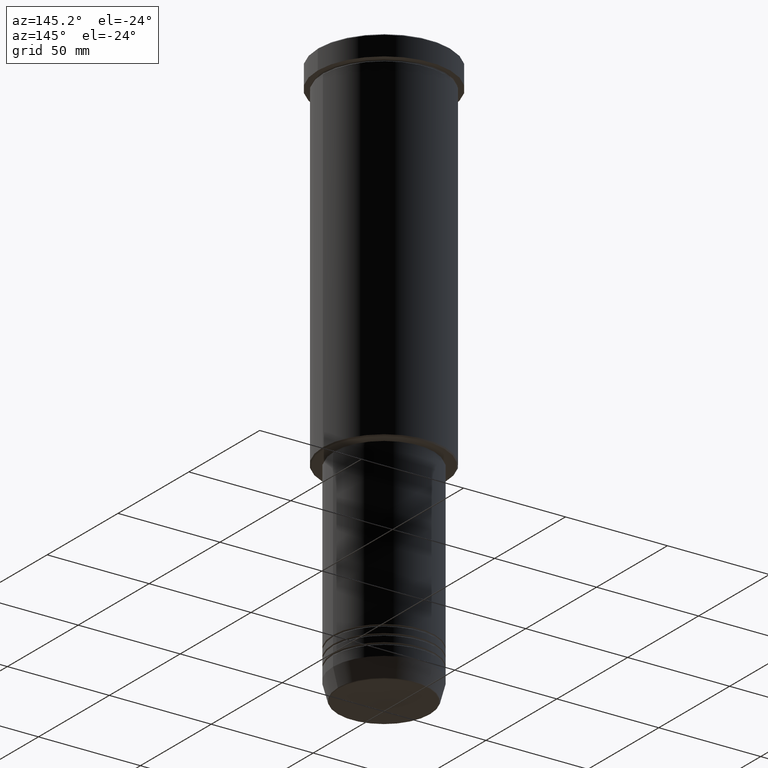
[diagram: clean part render]
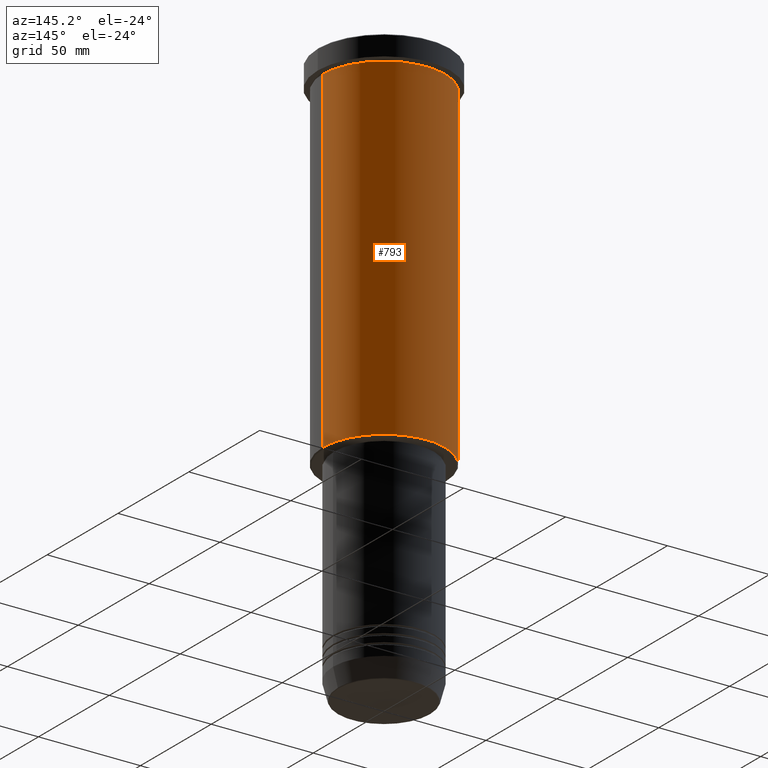
[diagram: same view with one face highlighted and labeled with its STEP entity id]
A machine part, auxiliary view. The second image highlights one B-rep face of the part: STEP entity #793.
In plain terms, the highlighted cylindrical surface (partial cylindrical patch) has radius 30 mm, axis along (-0, -0, 1).
Its self-contained STEP definition (entity closure, byte-faithful):
#17 = CARTESIAN_POINT ( 'NONE',  ( -30.00000000000000000, 3.673940397442059178E-15, -10.99999999999999289 ) ) ;
#53 = CARTESIAN_POINT ( 'NONE',  ( -30.00000000000000000, 3.673940397442059178E-15, -175.5000000000000568 ) ) ;
#140 = LINE ( 'NONE', #853, #684 ) ;
#147 = DIRECTION ( 'NONE',  ( 1.000000000000000000, 0.000000000000000000, 0.000000000000000000 ) ) ;
#151 = DIRECTION ( 'NONE',  ( -0.000000000000000000, -0.000000000000000000, 1.000000000000000000 ) ) ;
#158 = CARTESIAN_POINT ( 'NONE',  ( 0.000000000000000000, 0.000000000000000000, 0.000000000000000000 ) ) ;
#170 = CIRCLE ( 'NONE', #349, 30.00000000000000000 ) ;
#173 = ORIENTED_EDGE ( 'NONE', *, *, #823, .F. ) ;
#236 = CARTESIAN_POINT ( 'NONE',  ( 30.00000000000000000, 0.000000000000000000, 0.000000000000000000 ) ) ;
#320 = CARTESIAN_POINT ( 'NONE',  ( 0.000000000000000000, 0.000000000000000000, -175.5000000000000568 ) ) ;
#349 = AXIS2_PLACEMENT_3D ( 'NONE', #320, #1047, #523 ) ;
#386 = VERTEX_POINT ( 'NONE', #53 ) ;
#440 = CARTESIAN_POINT ( 'NONE',  ( 0.000000000000000000, 0.000000000000000000, -10.99999999999999289 ) ) ;
#461 = VERTEX_POINT ( 'NONE', #803 ) ;
#466 = ORIENTED_EDGE ( 'NONE', *, *, #540, .F. ) ;
#517 = EDGE_CURVE ( 'NONE', #461, #386, #170, .T. ) ;
#523 = DIRECTION ( 'NONE',  ( -1.000000000000000000, 0.000000000000000000, 0.000000000000000000 ) ) ;
#533 = DIRECTION ( 'NONE',  ( -0.000000000000000000, -0.000000000000000000, 1.000000000000000000 ) ) ;
#540 = EDGE_CURVE ( 'NONE', #461, #580, #974, .T. ) ;
#580 = VERTEX_POINT ( 'NONE', #880 ) ;
#683 = AXIS2_PLACEMENT_3D ( 'NONE', #158, #970, #716 ) ;
#684 = VECTOR ( 'NONE', #770, 1000.000000000000000 ) ;
#716 = DIRECTION ( 'NONE',  ( 1.000000000000000000, 0.000000000000000000, 0.000000000000000000 ) ) ;
#737 = VECTOR ( 'NONE', #151, 1000.000000000000000 ) ;
#770 = DIRECTION ( 'NONE',  ( -0.000000000000000000, -0.000000000000000000, 1.000000000000000000 ) ) ;
#793 = ADVANCED_FACE ( 'NONE', ( #1075 ), #797, .T. ) ;
#797 = CYLINDRICAL_SURFACE ( 'NONE', #683, 30.00000000000000000 ) ;
#803 = CARTESIAN_POINT ( 'NONE',  ( 30.00000000000000000, 0.000000000000000000, -175.5000000000000568 ) ) ;
#821 = EDGE_LOOP ( 'NONE', ( #909, #1181, #173, #466 ) ) ;
#823 = EDGE_CURVE ( 'NONE', #580, #889, #1052, .T. ) ;
#853 = CARTESIAN_POINT ( 'NONE',  ( -30.00000000000000000, 3.673940397442059178E-15, 0.000000000000000000 ) ) ;
#880 = CARTESIAN_POINT ( 'NONE',  ( 30.00000000000000000, 0.000000000000000000, -10.99999999999999289 ) ) ;
#889 = VERTEX_POINT ( 'NONE', #17 ) ;
#909 = ORIENTED_EDGE ( 'NONE', *, *, #517, .T. ) ;
#970 = DIRECTION ( 'NONE',  ( -0.000000000000000000, -0.000000000000000000, 1.000000000000000000 ) ) ;
#974 = LINE ( 'NONE', #236, #737 ) ;
#1047 = DIRECTION ( 'NONE',  ( -0.000000000000000000, -0.000000000000000000, 1.000000000000000000 ) ) ;
#1052 = CIRCLE ( 'NONE', #1151, 30.00000000000000000 ) ;
#1075 = FACE_OUTER_BOUND ( 'NONE', #821, .T. ) ;
#1151 = AXIS2_PLACEMENT_3D ( 'NONE', #440, #533, #147 ) ;
#1178 = EDGE_CURVE ( 'NONE', #386, #889, #140, .T. ) ;
#1181 = ORIENTED_EDGE ( 'NONE', *, *, #1178, .T. ) ;